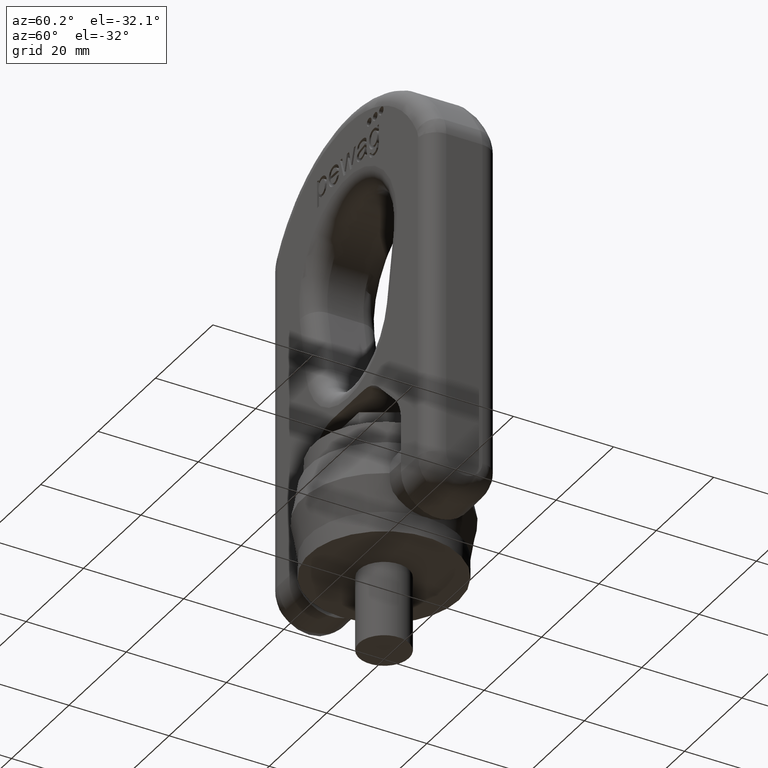
[diagram: clean part render]
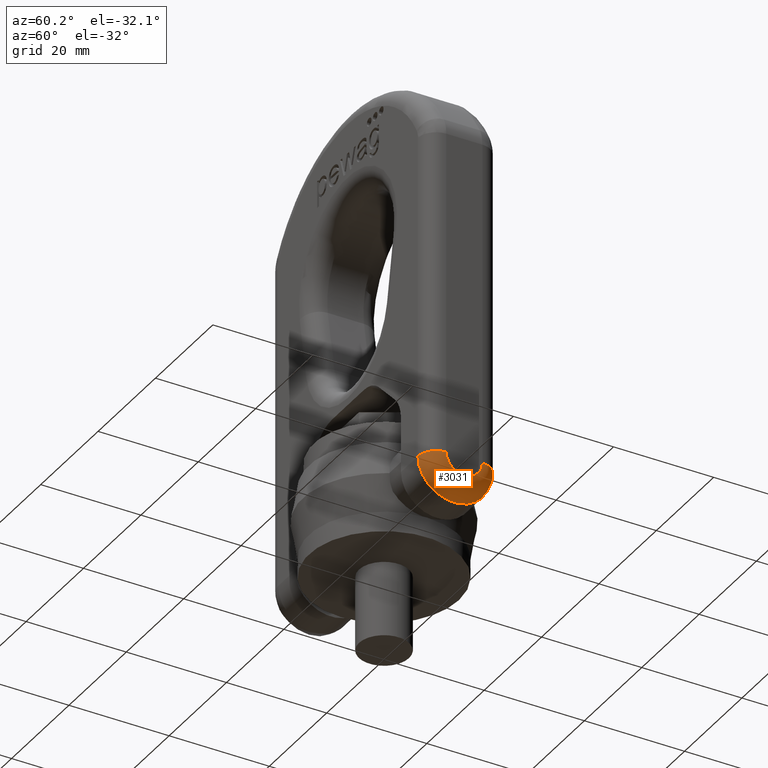
[diagram: same view with one face highlighted and labeled with its STEP entity id]
A machine part, auxiliary view. The second image highlights one B-rep face of the part: STEP entity #3031.
In plain terms, the highlighted face is a freeform B-spline surface patch.
Its self-contained STEP definition (entity closure, byte-faithful):
#212=(
BOUNDED_SURFACE()
B_SPLINE_SURFACE(3,3,((#9813,#9814,#9815,#9816),(#9817,#9818,#9819,#9820),
(#9821,#9822,#9823,#9824),(#9825,#9826,#9827,#9828)),.UNSPECIFIED.,.F.,
 .F.,.F.)
B_SPLINE_SURFACE_WITH_KNOTS((4,4),(4,4),(0.,1.),(0.,1.),.UNSPECIFIED.)
GEOMETRIC_REPRESENTATION_ITEM()
RATIONAL_B_SPLINE_SURFACE(((1.,0.333333333333333,0.333333333333333,1.),
(0.804737854124365,0.268245951374788,0.268245951374788,0.804737854124365),
(0.804737854124365,0.268245951374788,0.268245951374788,0.804737854124365),
(1.,0.333333333333333,0.333333333333333,1.)))
REPRESENTATION_ITEM('')
SURFACE()
);
#2656=FACE_OUTER_BOUND('',#3424,.T.);
#3031=ADVANCED_FACE('',(#2656),#212,.T.);
#3424=EDGE_LOOP('',(#4661,#4662,#4663,#4664));
#4661=ORIENTED_EDGE('',*,*,#5739,.T.);
#4662=ORIENTED_EDGE('',*,*,#5174,.F.);
#4663=ORIENTED_EDGE('',*,*,#5740,.T.);
#4664=ORIENTED_EDGE('',*,*,#5364,.F.);
#4741=VERTEX_POINT('',#7064);
#4742=VERTEX_POINT('',#7066);
#4923=VERTEX_POINT('',#7752);
#4924=VERTEX_POINT('',#7753);
#5174=EDGE_CURVE('',#4741,#4742,#5762,.T.);
#5364=EDGE_CURVE('',#4923,#4924,#5790,.T.);
#5739=EDGE_CURVE('',#4923,#4742,#5817,.T.);
#5740=EDGE_CURVE('',#4741,#4924,#5818,.T.);
#5762=CIRCLE('',#5867,7.19999999999997);
#5790=CIRCLE('',#5902,3.59999999999997);
#5817=CIRCLE('',#6044,3.6);
#5818=CIRCLE('',#6046,3.6);
#5867=AXIS2_PLACEMENT_3D('',#7065,#6188,#6189);
#5902=AXIS2_PLACEMENT_3D('',#7751,#6352,#6353);
#6044=AXIS2_PLACEMENT_3D('',#9809,#6896,#6897);
#6046=AXIS2_PLACEMENT_3D('',#9811,#6900,#6901);
#6188=DIRECTION('',(-1.,0.,-1.4065325480893E-16));
#6189=DIRECTION('',(0.,0.,1.));
#6352=DIRECTION('',(1.,0.,1.4065325480893E-16));
#6353=DIRECTION('',(0.,0.,1.));
#6896=DIRECTION('',(0.,0.,-1.));
#6897=DIRECTION('',(-1.,0.,0.));
#6900=DIRECTION('',(0.,0.,-1.));
#6901=DIRECTION('',(-1.,0.,0.));
#7064=CARTESIAN_POINT('',(24.4,7.19999999999994,9.19999999999997));
#7065=CARTESIAN_POINT('',(24.4,-2.87220644093874E-14,9.19999999999997));
#7066=CARTESIAN_POINT('',(24.4,-7.2,9.19999999999997));
#7751=CARTESIAN_POINT('',(28.,-2.87220644093874E-14,9.19999999999997));
#7752=CARTESIAN_POINT('',(28.,-3.6,9.19999999999997));
#7753=CARTESIAN_POINT('',(28.,3.59999999999994,9.19999999999997));
#9809=CARTESIAN_POINT('',(24.4,-3.6,9.19999999999997));
#9811=CARTESIAN_POINT('',(24.4,3.59999999999994,9.19999999999997));
#9813=CARTESIAN_POINT('',(24.4,7.19999999999994,9.19999999999997));
#9814=CARTESIAN_POINT('',(24.4,7.19999999999994,-5.19999999999996));
#9815=CARTESIAN_POINT('',(24.4,-7.19999999999999,-5.19999999999996));
#9816=CARTESIAN_POINT('',(24.4,-7.2,9.19999999999997));
#9817=CARTESIAN_POINT('',(26.5088311754569,7.19999999999994,9.19999999999997));
#9818=CARTESIAN_POINT('',(26.5088311754569,7.19999999999994,-5.19999999999996));
#9819=CARTESIAN_POINT('',(26.5088311754569,-7.2,-5.19999999999997));
#9820=CARTESIAN_POINT('',(26.5088311754569,-7.2,9.19999999999997));
#9821=CARTESIAN_POINT('',(28.,5.7088311754568,9.19999999999997));
#9822=CARTESIAN_POINT('',(28.,5.7088311754568,-2.21766235091368));
#9823=CARTESIAN_POINT('',(28.,-5.70883117545686,-2.21766235091368));
#9824=CARTESIAN_POINT('',(28.,-5.70883117545686,9.19999999999997));
#9825=CARTESIAN_POINT('',(28.,3.59999999999994,9.19999999999997));
#9826=CARTESIAN_POINT('',(28.,3.59999999999994,2.00000000000004));
#9827=CARTESIAN_POINT('',(28.,-3.6,2.00000000000004));
#9828=CARTESIAN_POINT('',(28.,-3.6,9.19999999999997));